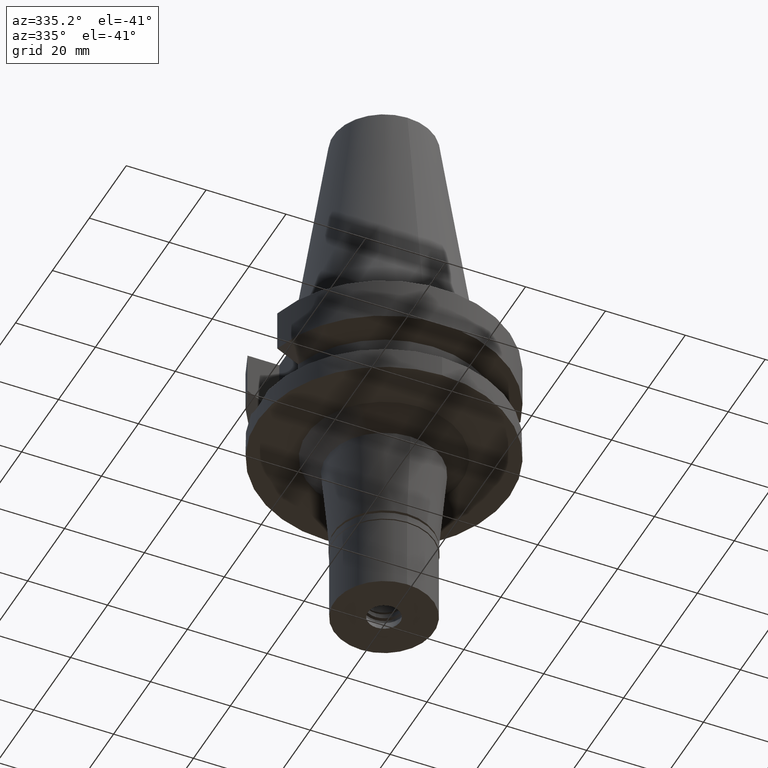
[diagram: clean part render]
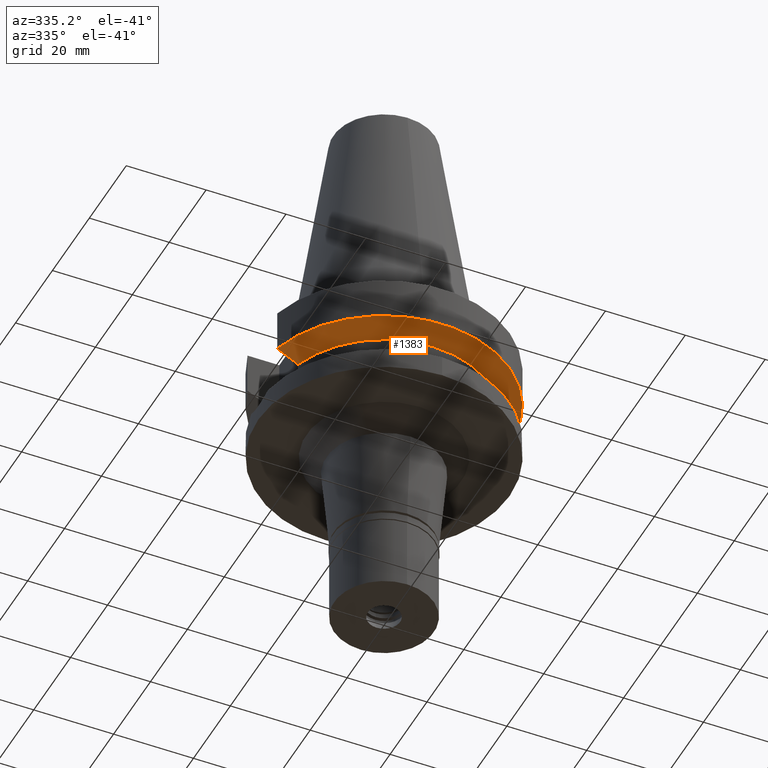
[diagram: same view with one face highlighted and labeled with its STEP entity id]
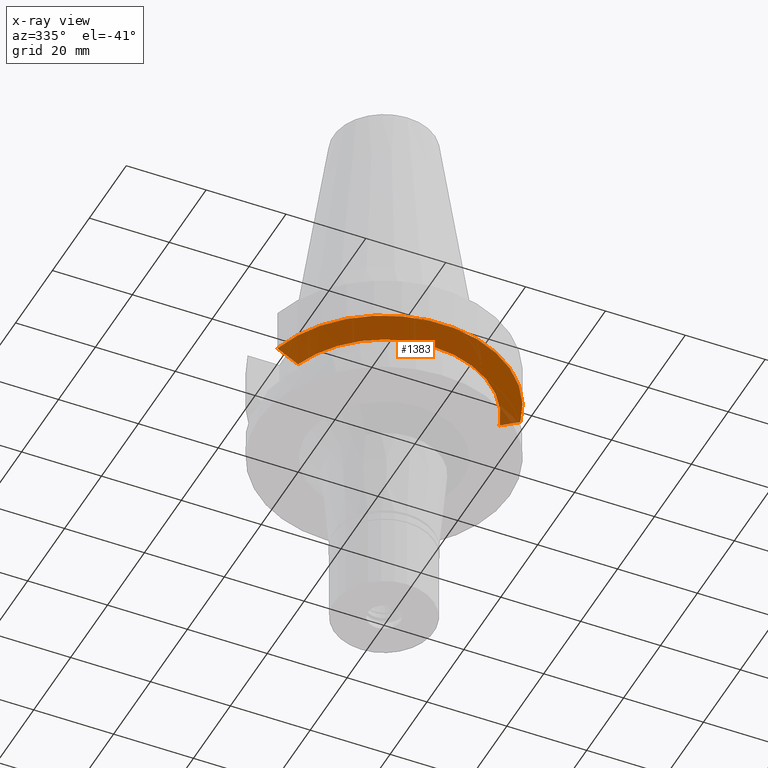
[diagram: x-ray of the same camera — body ghosted, the highlighted face saturated]
A machine part, auxiliary view. The second image highlights one B-rep face of the part: STEP entity #1383.
The next image is the same camera in x-ray: the body ghosted, the highlighted face saturated — about 3% of this face is hidden behind the body in this view.
In plain terms, the highlighted conical surface has half-angle 60 deg.
Its self-contained STEP definition (entity closure, byte-faithful):
#48 = CARTESIAN_POINT ( 'NONE',  ( 26.83757690344724978, -8.050003149232445310, -13.57772987603981285 ) ) ;
#80 = CONICAL_SURFACE ( 'NONE', #1475, 29.00000000000000000, 1.047197551196400456 ) ;
#123 = CARTESIAN_POINT ( 'NONE',  ( -25.24772413648999958, -8.049995399240000182, -14.45229215443000115 ) ) ;
#359 = CARTESIAN_POINT ( 'NONE',  ( -26.83754597434972666, -8.049990788289646204, -13.57774898884759374 ) ) ;
#411 = ORIENTED_EDGE ( 'NONE', *, *, #1646, .T. ) ;
#487 = ORIENTED_EDGE ( 'NONE', *, *, #2515, .T. ) ;
#645 = VERTEX_POINT ( 'NONE', #739 ) ;
#739 = CARTESIAN_POINT ( 'NONE',  ( 30.45402272279000044, -8.049999999999000622, -11.56550565266999975 ) ) ;
#746 = ORIENTED_EDGE ( 'NONE', *, *, #2910, .F. ) ;
#756 = CARTESIAN_POINT ( 'NONE',  ( -25.24772413648999958, -8.049995399240000182, -14.45229215443000115 ) ) ;
#972 = DIRECTION ( 'NONE',  ( 0.0000000000000000000, 0.0000000000000000000, -1.000000000000000000 ) ) ;
#1002 = CARTESIAN_POINT ( 'NONE',  ( 28.57294912566023015, -8.050008306276204451, -12.61548011770814348 ) ) ;
#1016 = CARTESIAN_POINT ( 'NONE',  ( 25.24772266958000344, -8.050000000000000711, -14.45225699861000024 ) ) ;
#1048 = CARTESIAN_POINT ( 'NONE',  ( -28.57292311163320875, -8.049998545049252385, -12.61549615691923165 ) ) ;
#1083 = VERTEX_POINT ( 'NONE', #756 ) ;
#1093 = CARTESIAN_POINT ( 'NONE',  ( -30.45402291521000038, -8.049999272052000165, -11.56551220913999956 ) ) ;
#1174 = CARTESIAN_POINT ( 'NONE',  ( 0.0000000000000000000, 1.065333950388000029E-14, -11.56550565266999975 ) ) ;
#1209 = CARTESIAN_POINT ( 'NONE',  ( 0.0000000000000000000, 1.065333950388000029E-14, -14.45225699861000024 ) ) ;
#1273 = VERTEX_POINT ( 'NONE', #1474 ) ;
#1285 = CIRCLE ( 'NONE', #1638, 31.50000000000000000 ) ;
#1350 = EDGE_LOOP ( 'NONE', ( #487, #2941, #411, #746 ) ) ;
#1383 = ADVANCED_FACE ( 'NONE', ( #1508 ), #80, .T. ) ;
#1458 = DIRECTION ( 'NONE',  ( 0.0000000000000000000, -1.000000000000000000, 0.0000000000000000000 ) ) ;
#1474 = CARTESIAN_POINT ( 'NONE',  ( 25.24772266958000344, -8.050000000000000711, -14.45225699861000024 ) ) ;
#1475 = AXIS2_PLACEMENT_3D ( 'NONE', #1546, #2500, #2742 ) ;
#1508 = FACE_OUTER_BOUND ( 'NONE', #1350, .T. ) ;
#1532 = VERTEX_POINT ( 'NONE', #1093 ) ;
#1546 = CARTESIAN_POINT ( 'NONE',  ( 0.0000000000000000000, 1.065333950388000029E-14, -13.00888132564000088 ) ) ;
#1638 = AXIS2_PLACEMENT_3D ( 'NONE', #1174, #2122, #1458 ) ;
#1646 = EDGE_CURVE ( 'NONE', #1273, #645, #2411, .T. ) ;
#1713 = CARTESIAN_POINT ( 'NONE',  ( -30.45402291521000038, -8.049999272052000165, -11.56551220913999956 ) ) ;
#1885 = CIRCLE ( 'NONE', #2035, 26.50000000000000711 ) ;
#1957 = EDGE_CURVE ( 'NONE', #1273, #1083, #1885, .T. ) ;
#2035 = AXIS2_PLACEMENT_3D ( 'NONE', #1209, #972, #2160 ) ;
#2115 = B_SPLINE_CURVE_WITH_KNOTS ( 'NONE', 3,
 ( #1713, #1048, #359, #123 ),
 .UNSPECIFIED., .F., .F.,
 ( 4, 4 ),
 ( 0.0000000000000000000, 1.000000000000000000 ),
 .UNSPECIFIED. ) ;
#2122 = DIRECTION ( 'NONE',  ( 0.0000000000000000000, 0.0000000000000000000, 1.000000000000000000 ) ) ;
#2160 = DIRECTION ( 'NONE',  ( 0.9527442516822307583, -0.3037735849057093818, 0.0000000000000000000 ) ) ;
#2411 = B_SPLINE_CURVE_WITH_KNOTS ( 'NONE', 3,
 ( #1016, #48, #1002, #2930 ),
 .UNSPECIFIED., .F., .F.,
 ( 4, 4 ),
 ( 0.0000000000000000000, 1.000000000000000000 ),
 .UNSPECIFIED. ) ;
#2500 = DIRECTION ( 'NONE',  ( 0.0000000000000000000, 0.0000000000000000000, 1.000000000000000000 ) ) ;
#2515 = EDGE_CURVE ( 'NONE', #1532, #1083, #2115, .T. ) ;
#2742 = DIRECTION ( 'NONE',  ( 0.0000000000000000000, 1.000000000000000000, 0.0000000000000000000 ) ) ;
#2910 = EDGE_CURVE ( 'NONE', #1532, #645, #1285, .T. ) ;
#2930 = CARTESIAN_POINT ( 'NONE',  ( 30.45402272279000044, -8.049999999999000622, -11.56550565266999975 ) ) ;
#2941 = ORIENTED_EDGE ( 'NONE', *, *, #1957, .F. ) ;